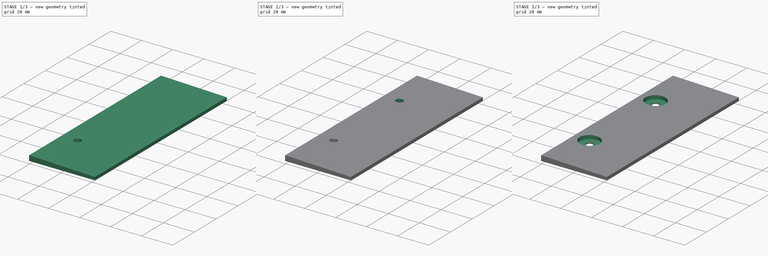
[diagram: build sequence overview — one tinted view per stage of 3, left to right]
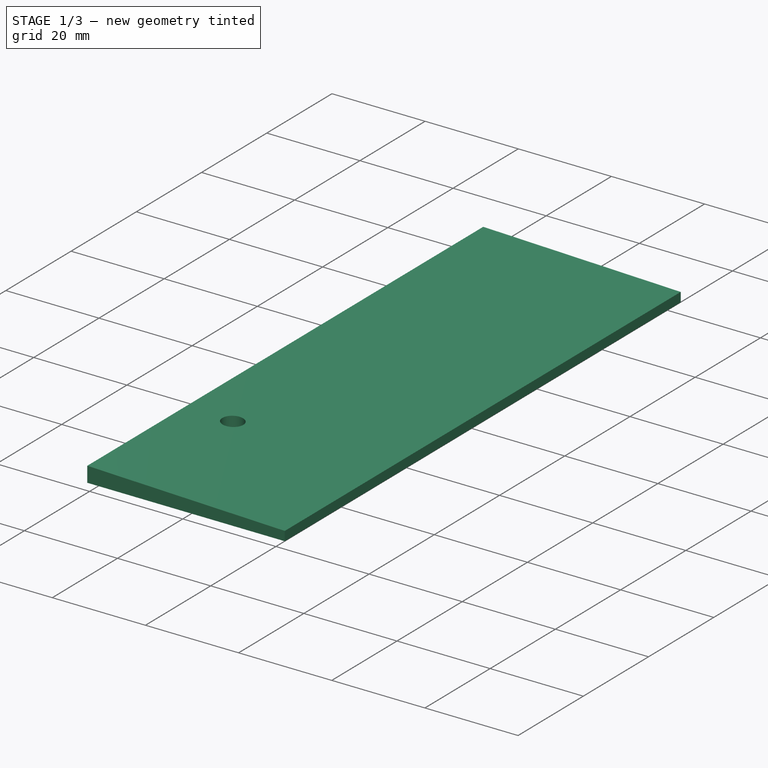
[diagram: stage 1 of 3 — iso view after this stage's code; geometry added in this stage tinted green]
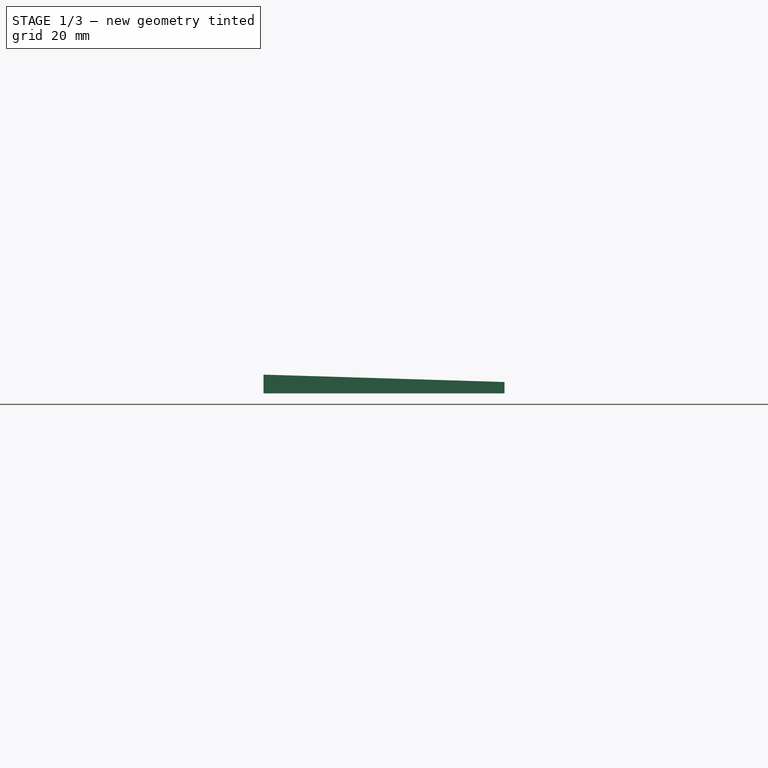
[diagram: stage 1 of 3 — front view after this stage's code; geometry added in this stage tinted green]
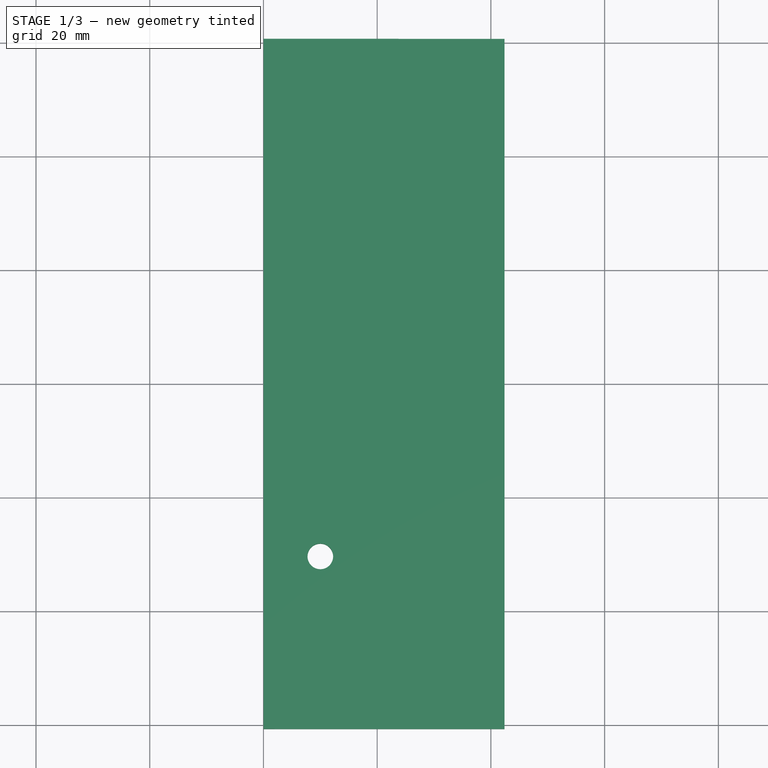
[diagram: stage 1 of 3 — top view after this stage's code; geometry added in this stage tinted green]
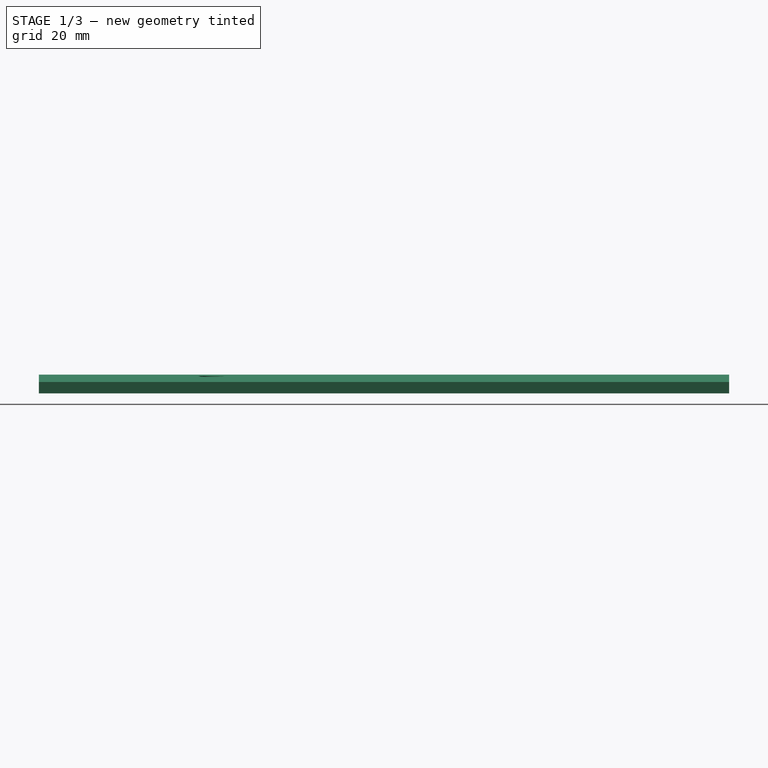
[diagram: stage 1 of 3 — right view after this stage's code; geometry added in this stage tinted green]
FCSTD DOCUMENT  (FreeCAD 0.18RUnknown)
Label: lower_brain_foot
License: All rights reserved
LicenseURL: http://en.wikipedia.org/wiki/All_rights_reserved
objects: Sketcher::SketchObject×3, PartDesign::Pocket×2, PartDesign::Mirrored×2, PartDesign::Pad×1, PartDesign::Plane×1, PartDesign::Body×1
note: 13 computed .brp shape members not serialized (recipe doc carries the construction recipe); baked Part::Feature solids carry a one-line shape summary decoded from their .brp

FEATURE [Sketcher::SketchObject] Sketch
  MapMode = 5
  Placement = pos=(0,0,0) rot=(1,0,0;1.5708rad)
  Support = -> [XZ_Plane]
  sketch-geometry (4):
    g0: LineSegment StartX=0 StartY=0 StartZ=0 EndX=42.4 EndY=0 EndZ=0
    g1: LineSegment StartX=42.4 StartY=0 StartZ=0 EndX=42.4 EndY=2 EndZ=0
    g2: LineSegment StartX=42.4 StartY=2 StartZ=0 EndX=0 EndY=3.3 EndZ=0
    g3: LineSegment StartX=0 StartY=3.3 StartZ=0 EndX=0 EndY=0 EndZ=0
  constraints (11):
    c: Coincident(g0,g1)
    c: Coincident(g1,g2)
    c: Coincident(g2,g3)
    c: Coincident(g3,g0)
    c: Coincident(g0,g-1)
    c: Vertical(g3)
    c: Vertical(g1)
    c: Horizontal(g0)
    c: DistanceY(g1,g1) = 2
    c: DistanceY(g3,g3) = 3.3
    c: DistanceX(g0,g0) = 42.4
FEATURE [PartDesign::Pad] Pad
  Length = 60.7
  Length2 = 60.7
  Placement = pos=(0,0,0) rot=(1,0,0;1.5708rad)
  Profile = -> Sketch
  Type = 4
FEATURE [Sketcher::SketchObject] Sketch001
  ExternalGeometry = -> [Pad]
  MapMode = 5
  Placement = pos=(0,0,0) rot=(1,0,0;3.14159rad)
  Support = -> [Pad]
  sketch-geometry (5):
    g0: Circle CenterX=10 CenterY=30.35 CenterZ=0 NormalX=0 NormalY=0 NormalZ=1 AngleXU=0 Radius=2.25
    g1: LineSegment [constr] StartX=0 StartY=60.7 StartZ=0 EndX=0 EndY=0 EndZ=0
    g2: LineSegment [constr] StartX=0 StartY=60.7 StartZ=0 EndX=42.4 EndY=0 EndZ=0
    g3: LineSegment [constr] StartX=42.4 StartY=60.7 StartZ=0 EndX=0 EndY=0 EndZ=0
    g4: LineSegment [constr] StartX=0 StartY=30.35 StartZ=0 EndX=21.2 EndY=30.35 EndZ=0
  constraints (14):
    c: Diameter(g0) = 4.5
    c: Coincident(g1,g-3)
    c: Coincident(g1,g-1)
    c: DistanceX(g1,g0) = 10
    c: Coincident(g2,g1)
    c: Coincident(g3,g-3)
    c: PointOnObject(g2,g-4)
    c: PointOnObject(g2,g-1)
    c: Coincident(g3,g-1)
    c: PointOnObject(g4,g3)
    c: PointOnObject(g4,g2)
    c: Horizontal(g4)
    c: PointOnObject(g4,g1)
    c: PointOnObject(g0,g4)
FEATURE [PartDesign::Pocket] Pocket
  BaseFeature = -> Pad
  Length = 5
  Length2 = 100
  Placement = pos=(0,0,0) rot=(1,0,0;1.5708rad)
  Profile = -> Sketch001
  Type = 1
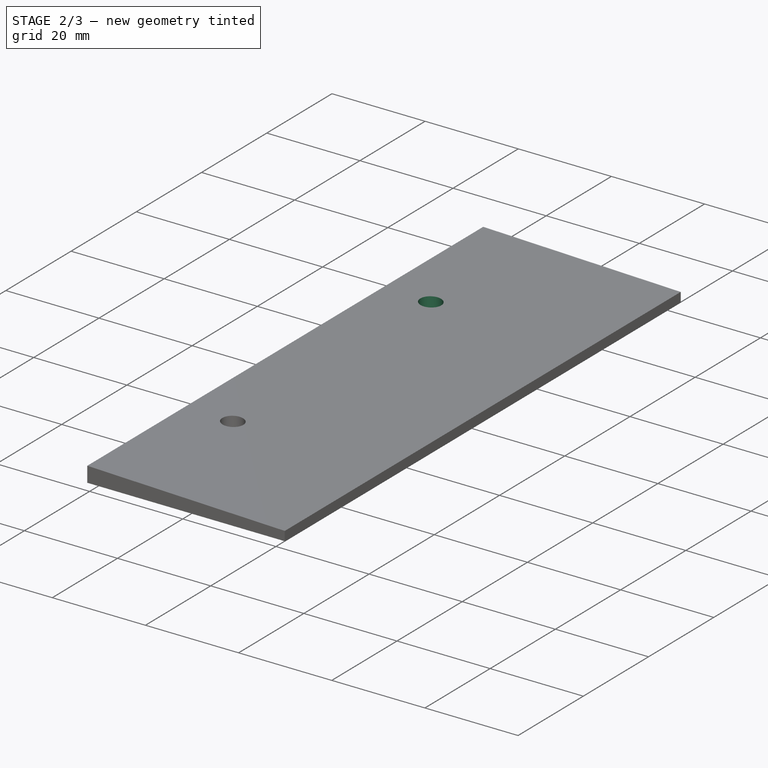
[diagram: stage 2 of 3 — iso view after this stage's code; geometry added in this stage tinted green]
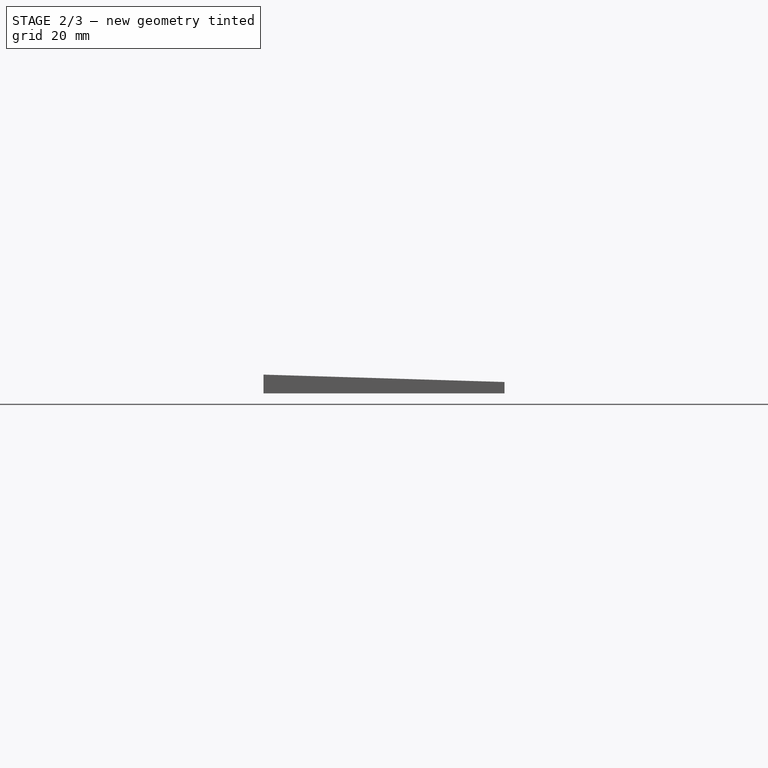
[diagram: stage 2 of 3 — front view after this stage's code; geometry added in this stage tinted green]
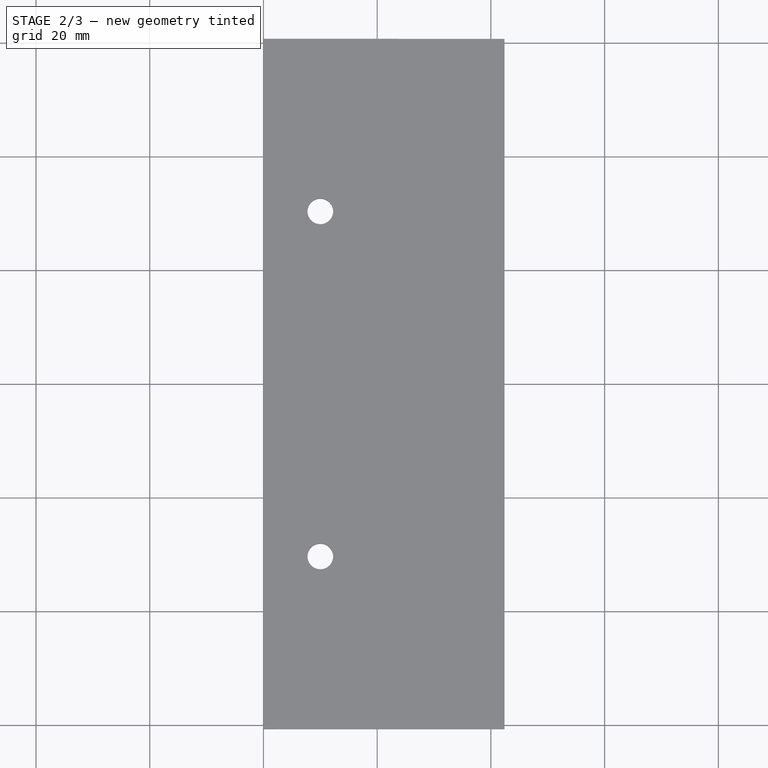
[diagram: stage 2 of 3 — top view after this stage's code; geometry added in this stage tinted green]
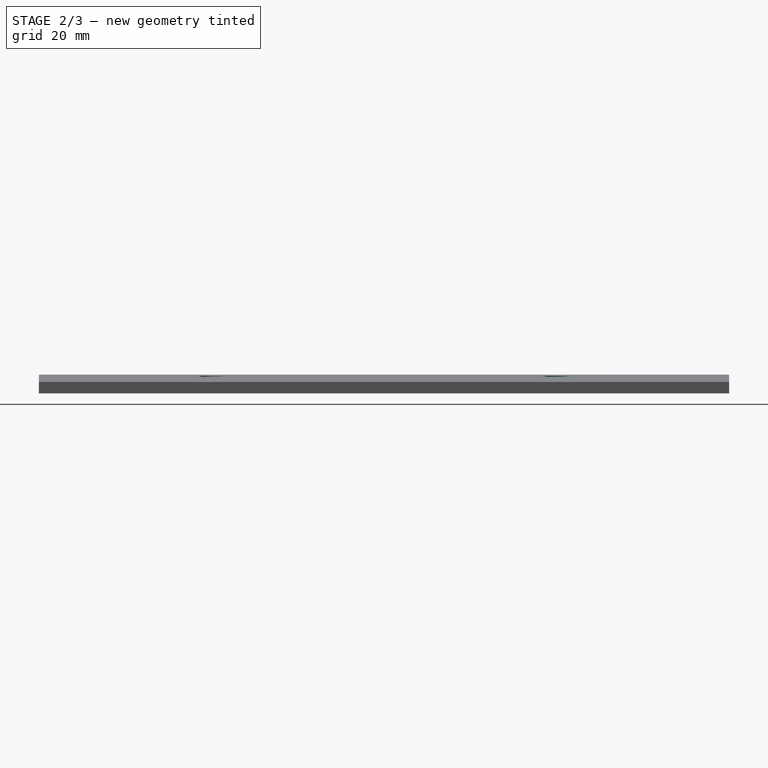
[diagram: stage 2 of 3 — right view after this stage's code; geometry added in this stage tinted green]
FEATURE [PartDesign::Mirrored] Mirrored
  BaseFeature = -> Pocket
  MirrorPlane = -> XZ_Plane
  Originals = -> [Pocket]
  Placement = pos=(0,0,0) rot=(1,0,0;1.5708rad)
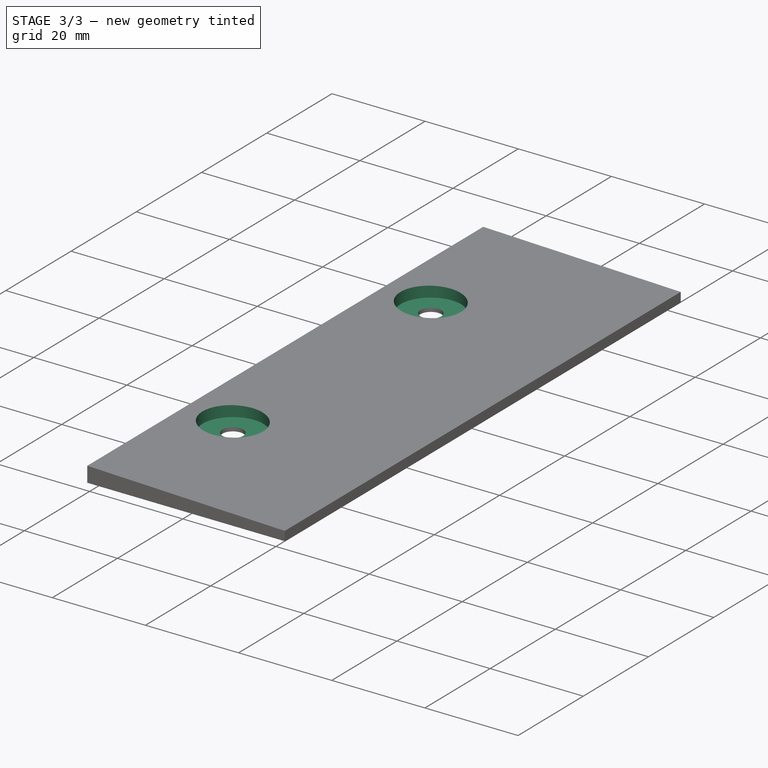
[diagram: stage 3 of 3 — iso view after this stage's code; geometry added in this stage tinted green]
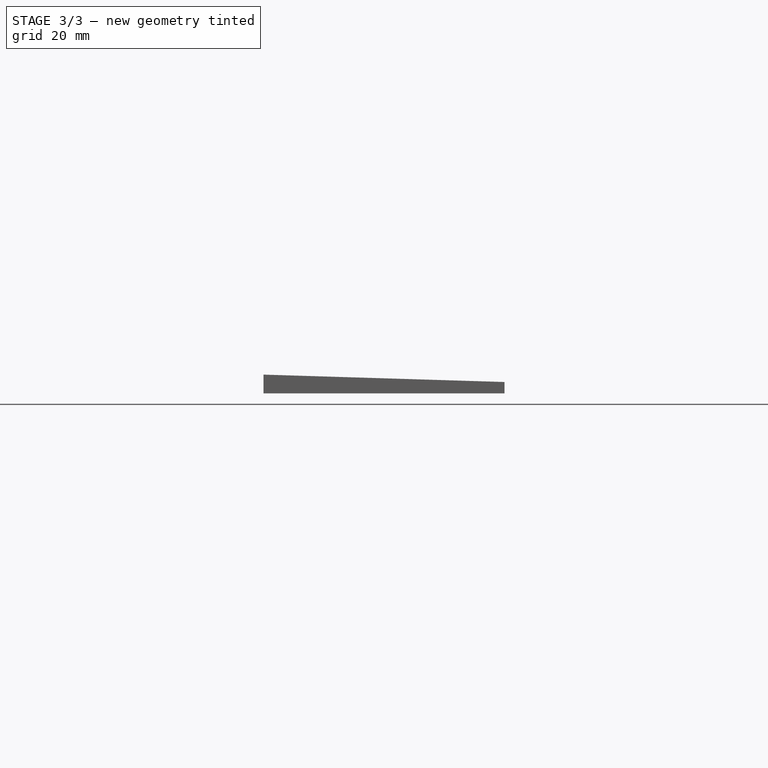
[diagram: stage 3 of 3 — front view after this stage's code; geometry added in this stage tinted green]
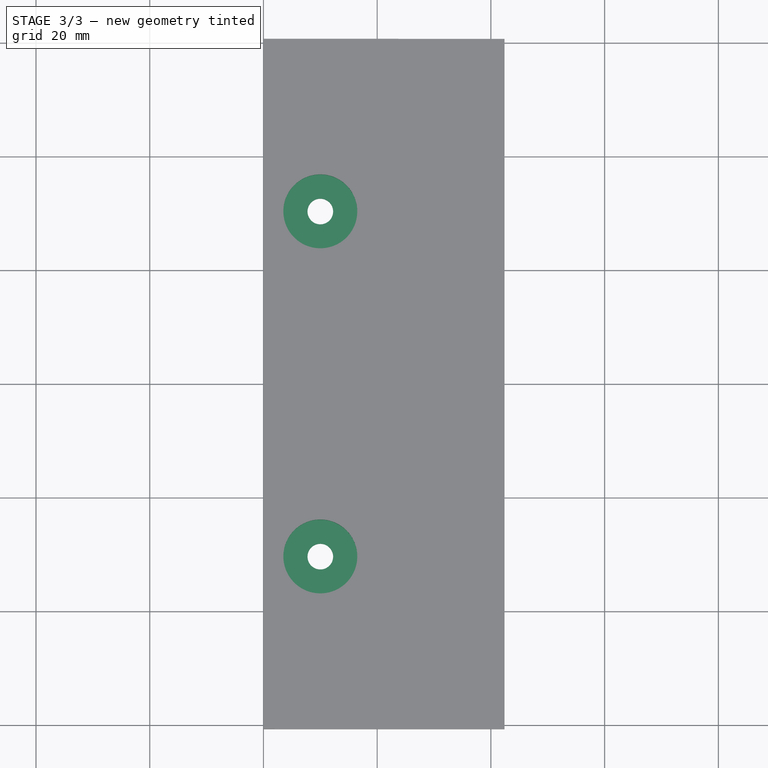
[diagram: stage 3 of 3 — top view after this stage's code; geometry added in this stage tinted green]
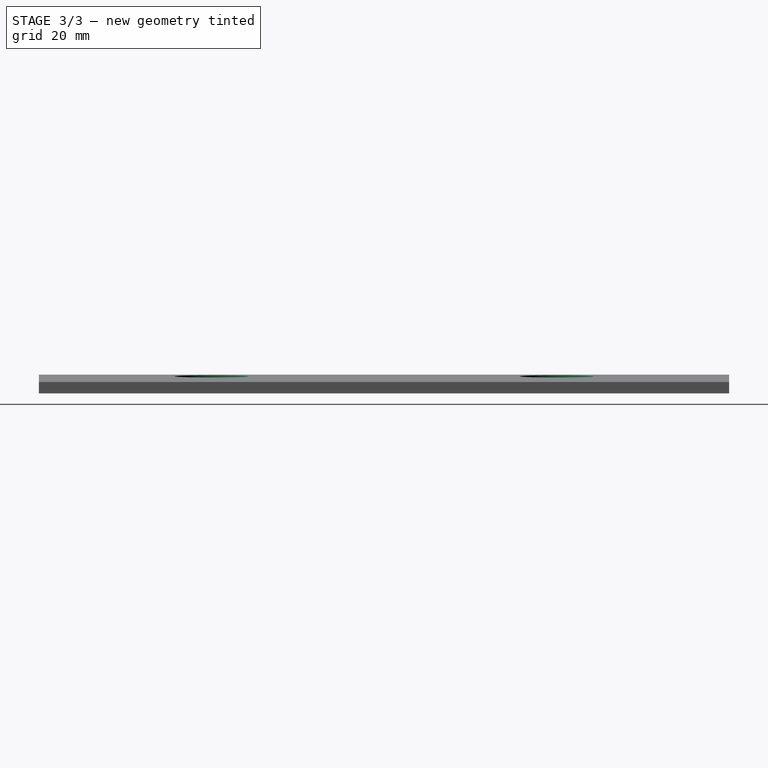
[diagram: stage 3 of 3 — right view after this stage's code; geometry added in this stage tinted green]
FEATURE [PartDesign::Plane] DatumPlane
  Length = 68.3516
  MapMode = 7
  Placement = pos=(0,-60.7,3.3) rot=(0,0,1;0rad)
  ResizeMode = 0
  Support = -> [Mirrored]
  Width = 137.352
FEATURE [Sketcher::SketchObject] Sketch002
  ExternalGeometry = -> [Mirrored]
  MapMode = 5
  Placement = pos=(0,-60.7,3.3) rot=(0,0,1;0rad)
  Support = -> [DatumPlane]
  sketch-geometry (1):
    g0: Circle CenterX=10 CenterY=91.05 CenterZ=0 NormalX=0 NormalY=0 NormalZ=1 AngleXU=0 Radius=6.5
  constraints (2):
    c: Diameter(g0) = 13
    c: Coincident(g0,g-3)
FEATURE [PartDesign::Pocket] Pocket001
  BaseFeature = -> Mirrored
  Length = 2.5
  Length2 = 100
  Placement = pos=(0,0,0) rot=(1,0,0;1.5708rad)
  Profile = -> Sketch002
  Type = 0
FEATURE [PartDesign::Mirrored] Mirrored001
  BaseFeature = -> Pocket001
  MirrorPlane = -> XZ_Plane
  Originals = -> [Pocket001]
  Placement = pos=(0,0,0) rot=(1,0,0;1.5708rad)
FEATURE [PartDesign::Body] Body
  Group = -> [Sketch,Pad,Sketch001,Pocket,Mirrored,DatumPlane,Sketch002,Pocket001,Mirrored001]
  Origin = -> Origin
  Tip = -> Mirrored001
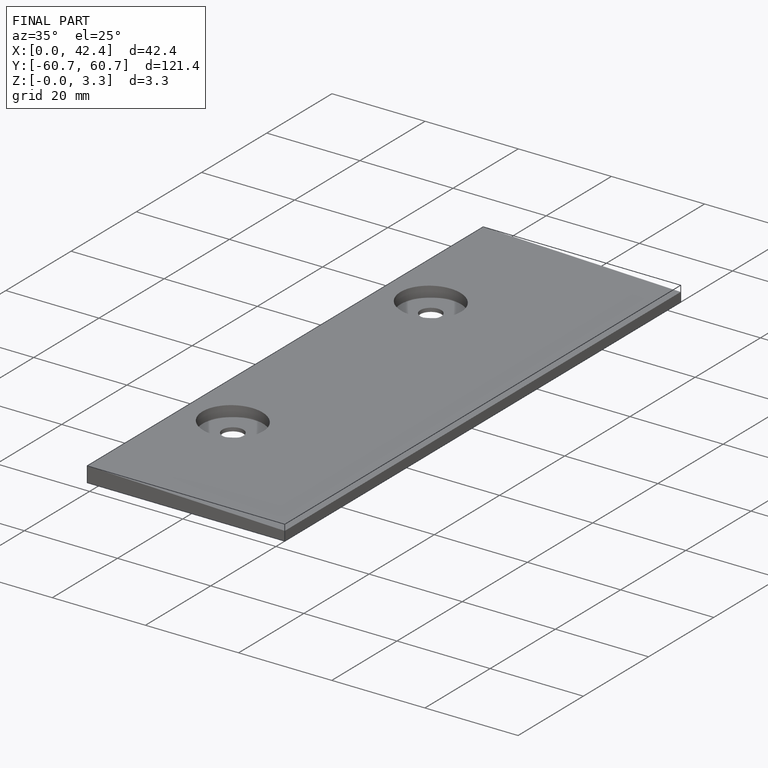
[diagram: finished part — iso view with bounding-box wireframe]
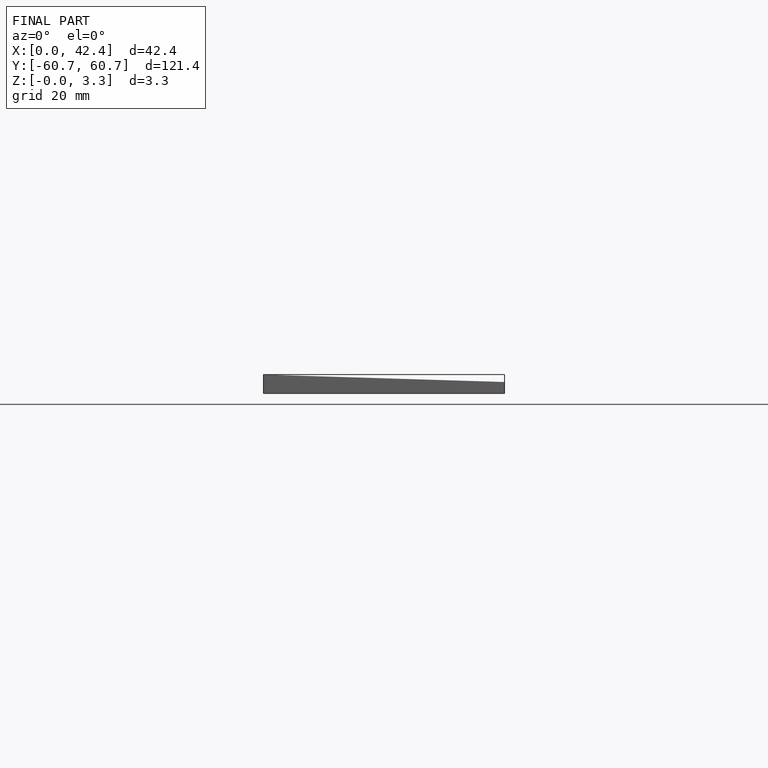
[diagram: finished part — front view with bounding-box wireframe]
